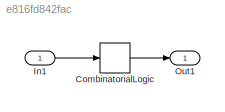
MODEL slx_e816fd842fac
KIND model
CONFIG AbsTol = auto
CONFIG EnableMultiTasking = off
CONFIG FixedStep = 0.200000
CONFIG MaxStep = auto
CONFIG MinStep = auto
CONFIG RelTol = 1e-3
CONFIG SampleTimeConstraint = Unconstrained
CONFIG Solver = FixedStepDiscrete
CONFIG SolverName = FixedStepDiscrete
CONFIG StartTime = 0.0
CONFIG StopTime = 19.8
WORKSPACE source: MAT-file member
WORKSPACE already_pp = 0
BLOCK [CombinatorialLogic] CombinatorialLogic
  TruthTable = [0 0;0 1;0 1;1 0;3 1;1 0;1 0;-1 1]
BLOCK [Inport] In1
  IconDisplay = Port number
  OutDataTypeStr = boolean
  PortDimensions = 3
BLOCK [Outport] Out1
  IconDisplay = Port number
LINE CombinatorialLogic:1 -> Out1:1
LINE In1:1 -> CombinatorialLogic:1
